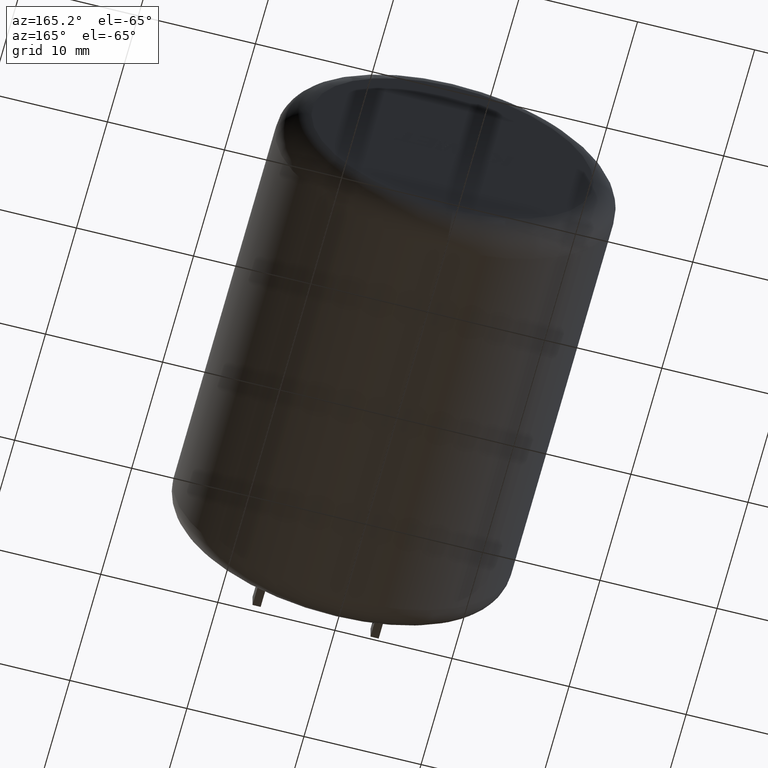
[diagram: clean part render]
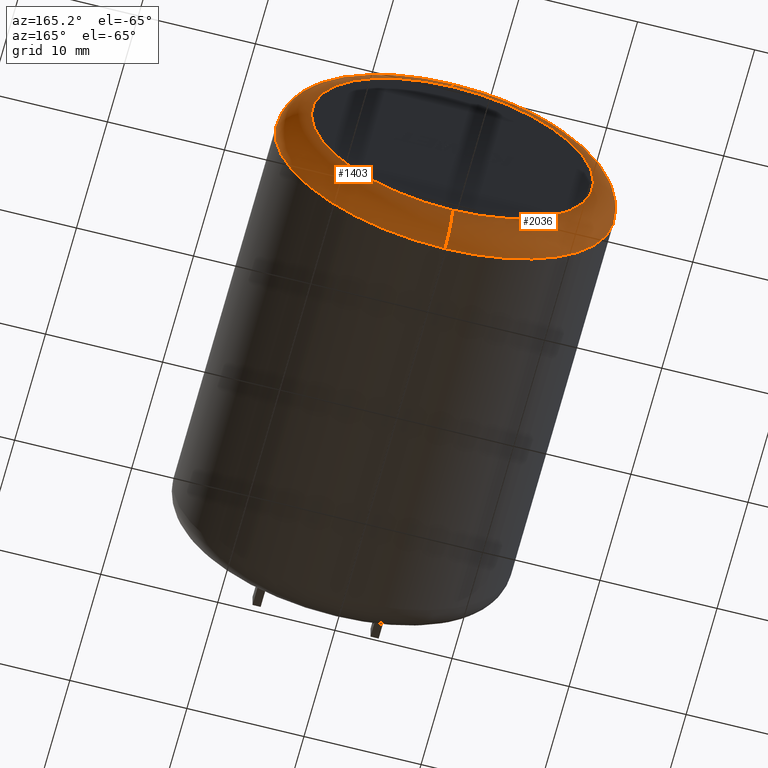
[diagram: same view with one multi-face feature highlighted, each face labeled with its STEP entity id]
A machine part, auxiliary view. The highlighted faces form ONE feature: a constant-radius fillet chain: 2 tangent blend faces with common blend radius 2.451 mm. The faces share edges in the B-rep.
Their STEP definitions:
[1] entity #2036 (Torus):
#50 = DIRECTION ( 'NONE',  ( -0.0000000000000000000, -1.000000000000000000, -0.0000000000000000000 ) ) ;
#98 = EDGE_CURVE ( 'NONE', #2365, #1048, #425, .T. ) ;
#115 = VERTEX_POINT ( 'NONE', #1090 ) ;
#163 = TOROIDAL_SURFACE ( 'NONE', #2208, 12.04900000000000100, 2.451000000000000100 ) ;
#174 = AXIS2_PLACEMENT_3D ( 'NONE', #1300, #247, #1924 ) ;
#188 = ORIENTED_EDGE ( 'NONE', *, *, #394, .F. ) ;
#204 = DIRECTION ( 'NONE',  ( 0.0000000000000000000, 1.000000000000000000, 0.0000000000000000000 ) ) ;
#247 = DIRECTION ( 'NONE',  ( -0.0000000000000000000, -1.000000000000000000, -0.0000000000000000000 ) ) ;
#269 = DIRECTION ( 'NONE',  ( 0.0000000000000000000, 0.0000000000000000000, 1.000000000000000000 ) ) ;
#289 = ORIENTED_EDGE ( 'NONE', *, *, #2350, .F. ) ;
#387 = AXIS2_PLACEMENT_3D ( 'NONE', #862, #1060, #889 ) ;
#394 = EDGE_CURVE ( 'NONE', #2062, #2365, #931, .T. ) ;
#402 = CARTESIAN_POINT ( 'NONE',  ( 0.0000000000000000000, 35.54899999999999900, -14.50000000000000000 ) ) ;
#415 = ORIENTED_EDGE ( 'NONE', *, *, #878, .F. ) ;
#425 = CIRCLE ( 'NONE', #387, 14.50000000000000000 ) ;
#427 = DIRECTION ( 'NONE',  ( 0.0000000000000000000, 0.0000000000000000000, 1.000000000000000000 ) ) ;
#546 = FACE_OUTER_BOUND ( 'NONE', #2556, .T. ) ;
#608 = CARTESIAN_POINT ( 'NONE',  ( 0.0000000000000000000, 35.54899999999999900, 12.04900000000000100 ) ) ;
#631 = DIRECTION ( 'NONE',  ( 0.0000000000000000000, 1.000000000000000000, 0.0000000000000000000 ) ) ;
#632 = CIRCLE ( 'NONE', #891, 12.04900000000000100 ) ;
#642 = CARTESIAN_POINT ( 'NONE',  ( 0.0000000000000000000, 38.00000000000000000, 0.0000000000000000000 ) ) ;
#681 = CARTESIAN_POINT ( 'NONE',  ( -8.873595198949967500, 35.54899999999999900, 11.46775079277414900 ) ) ;
#862 = CARTESIAN_POINT ( 'NONE',  ( 0.0000000000000000000, 35.54899999999999900, 0.0000000000000000000 ) ) ;
#878 = EDGE_CURVE ( 'NONE', #115, #2039, #632, .T. ) ;
#889 = DIRECTION ( 'NONE',  ( 8.881784197001252300E-016, 0.0000000000000000000, 1.000000000000000000 ) ) ;
#891 = AXIS2_PLACEMENT_3D ( 'NONE', #642, #204, #427 ) ;
#904 = ORIENTED_EDGE ( 'NONE', *, *, #945, .F. ) ;
#931 = CIRCLE ( 'NONE', #1104, 14.50000000000000000 ) ;
#939 = DIRECTION ( 'NONE',  ( 1.000000000000000000, -0.0000000000000000000, 1.224646799147353200E-016 ) ) ;
#945 = EDGE_CURVE ( 'NONE', #1357, #115, #2604, .T. ) ;
#1048 = VERTEX_POINT ( 'NONE', #1642 ) ;
#1060 = DIRECTION ( 'NONE',  ( -0.0000000000000000000, -1.000000000000000000, -0.0000000000000000000 ) ) ;
#1090 = CARTESIAN_POINT ( 'NONE',  ( 1.625657393528153900E-015, 38.00000000000000000, -12.04900000000000100 ) ) ;
#1104 = AXIS2_PLACEMENT_3D ( 'NONE', #1356, #50, #269 ) ;
#1300 = CARTESIAN_POINT ( 'NONE',  ( 0.0000000000000000000, 35.54899999999999900, 0.0000000000000000000 ) ) ;
#1307 = AXIS2_PLACEMENT_3D ( 'NONE', #608, #1858, #1631 ) ;
#1356 = CARTESIAN_POINT ( 'NONE',  ( 0.0000000000000000000, 35.54899999999999900, 0.0000000000000000000 ) ) ;
#1357 = VERTEX_POINT ( 'NONE', #402 ) ;
#1453 = CIRCLE ( 'NONE', #174, 14.50000000000000000 ) ;
#1499 = CARTESIAN_POINT ( 'NONE',  ( 0.0000000000000000000, 38.00000000000000000, 12.04900000000000100 ) ) ;
#1631 = DIRECTION ( 'NONE',  ( 0.0000000000000000000, 0.0000000000000000000, 1.000000000000000000 ) ) ;
#1642 = CARTESIAN_POINT ( 'NONE',  ( -10.36606700977331000, 35.54899999999999900, 10.13876988341729100 ) ) ;
#1785 = CARTESIAN_POINT ( 'NONE',  ( 1.475576928292645800E-015, 35.54899999999999900, -12.04900000000000100 ) ) ;
#1858 = DIRECTION ( 'NONE',  ( -1.000000000000000000, 0.0000000000000000000, 0.0000000000000000000 ) ) ;
#1924 = DIRECTION ( 'NONE',  ( 0.0000000000000000000, 0.0000000000000000000, 1.000000000000000000 ) ) ;
#1973 = ORIENTED_EDGE ( 'NONE', *, *, #2549, .T. ) ;
#1981 = ORIENTED_EDGE ( 'NONE', *, *, #98, .F. ) ;
#2016 = AXIS2_PLACEMENT_3D ( 'NONE', #1785, #939, #2627 ) ;
#2036 = ADVANCED_FACE ( 'NONE', ( #546 ), #163, .T. ) ;
#2039 = VERTEX_POINT ( 'NONE', #1499 ) ;
#2062 = VERTEX_POINT ( 'NONE', #2740 ) ;
#2094 = CIRCLE ( 'NONE', #1307, 2.451000000000000100 ) ;
#2208 = AXIS2_PLACEMENT_3D ( 'NONE', #2727, #631, #2544 ) ;
#2350 = EDGE_CURVE ( 'NONE', #1048, #1357, #1453, .T. ) ;
#2365 = VERTEX_POINT ( 'NONE', #681 ) ;
#2544 = DIRECTION ( 'NONE',  ( 0.0000000000000000000, 0.0000000000000000000, 1.000000000000000000 ) ) ;
#2549 = EDGE_CURVE ( 'NONE', #2062, #2039, #2094, .T. ) ;
#2556 = EDGE_LOOP ( 'NONE', ( #904, #289, #1981, #188, #1973, #415 ) ) ;
#2604 = CIRCLE ( 'NONE', #2016, 2.451000000000000100 ) ;
#2627 = DIRECTION ( 'NONE',  ( 1.224646799147352700E-016, 0.0000000000000000000, -1.000000000000000000 ) ) ;
#2727 = CARTESIAN_POINT ( 'NONE',  ( 0.0000000000000000000, 35.54899999999999900, 0.0000000000000000000 ) ) ;
#2740 = CARTESIAN_POINT ( 'NONE',  ( 1.775737858763662000E-015, 35.54899999999999900, 14.50000000000000000 ) ) ;
[2] entity #1403 (Torus):
#115 = VERTEX_POINT ( 'NONE', #1090 ) ;
#158 = DIRECTION ( 'NONE',  ( 0.0000000000000000000, 0.0000000000000000000, 1.000000000000000000 ) ) ;
#172 = TOROIDAL_SURFACE ( 'NONE', #1244, 12.04900000000000100, 2.451000000000000100 ) ;
#402 = CARTESIAN_POINT ( 'NONE',  ( 0.0000000000000000000, 35.54899999999999900, -14.50000000000000000 ) ) ;
#478 = ORIENTED_EDGE ( 'NONE', *, *, #1258, .F. ) ;
#608 = CARTESIAN_POINT ( 'NONE',  ( 0.0000000000000000000, 35.54899999999999900, 12.04900000000000100 ) ) ;
#648 = CIRCLE ( 'NONE', #2614, 12.04900000000000100 ) ;
#655 = EDGE_CURVE ( 'NONE', #2039, #115, #648, .T. ) ;
#702 = FACE_OUTER_BOUND ( 'NONE', #2233, .T. ) ;
#712 = DIRECTION ( 'NONE',  ( 0.0000000000000000000, 1.000000000000000000, 0.0000000000000000000 ) ) ;
#761 = CIRCLE ( 'NONE', #2254, 14.50000000000000000 ) ;
#939 = DIRECTION ( 'NONE',  ( 1.000000000000000000, -0.0000000000000000000, 1.224646799147353200E-016 ) ) ;
#945 = EDGE_CURVE ( 'NONE', #1357, #115, #2604, .T. ) ;
#959 = DIRECTION ( 'NONE',  ( 0.0000000000000000000, 0.0000000000000000000, 1.000000000000000000 ) ) ;
#991 = ORIENTED_EDGE ( 'NONE', *, *, #655, .F. ) ;
#1004 = CARTESIAN_POINT ( 'NONE',  ( 0.0000000000000000000, 35.54899999999999900, 0.0000000000000000000 ) ) ;
#1090 = CARTESIAN_POINT ( 'NONE',  ( 1.625657393528153900E-015, 38.00000000000000000, -12.04900000000000100 ) ) ;
#1244 = AXIS2_PLACEMENT_3D ( 'NONE', #1004, #712, #1946 ) ;
#1258 = EDGE_CURVE ( 'NONE', #1357, #2062, #761, .T. ) ;
#1307 = AXIS2_PLACEMENT_3D ( 'NONE', #608, #1858, #1631 ) ;
#1357 = VERTEX_POINT ( 'NONE', #402 ) ;
#1403 = ADVANCED_FACE ( 'NONE', ( #702 ), #172, .T. ) ;
#1438 = DIRECTION ( 'NONE',  ( -0.0000000000000000000, -1.000000000000000000, -0.0000000000000000000 ) ) ;
#1499 = CARTESIAN_POINT ( 'NONE',  ( 0.0000000000000000000, 38.00000000000000000, 12.04900000000000100 ) ) ;
#1605 = ORIENTED_EDGE ( 'NONE', *, *, #2549, .F. ) ;
#1631 = DIRECTION ( 'NONE',  ( 0.0000000000000000000, 0.0000000000000000000, 1.000000000000000000 ) ) ;
#1685 = ORIENTED_EDGE ( 'NONE', *, *, #945, .T. ) ;
#1785 = CARTESIAN_POINT ( 'NONE',  ( 1.475576928292645800E-015, 35.54899999999999900, -12.04900000000000100 ) ) ;
#1858 = DIRECTION ( 'NONE',  ( -1.000000000000000000, 0.0000000000000000000, 0.0000000000000000000 ) ) ;
#1946 = DIRECTION ( 'NONE',  ( 0.0000000000000000000, 0.0000000000000000000, 1.000000000000000000 ) ) ;
#2016 = AXIS2_PLACEMENT_3D ( 'NONE', #1785, #939, #2627 ) ;
#2039 = VERTEX_POINT ( 'NONE', #1499 ) ;
#2062 = VERTEX_POINT ( 'NONE', #2740 ) ;
#2094 = CIRCLE ( 'NONE', #1307, 2.451000000000000100 ) ;
#2219 = CARTESIAN_POINT ( 'NONE',  ( 0.0000000000000000000, 38.00000000000000000, 0.0000000000000000000 ) ) ;
#2233 = EDGE_LOOP ( 'NONE', ( #478, #1685, #991, #1605 ) ) ;
#2254 = AXIS2_PLACEMENT_3D ( 'NONE', #2507, #1438, #158 ) ;
#2427 = DIRECTION ( 'NONE',  ( 0.0000000000000000000, 1.000000000000000000, 0.0000000000000000000 ) ) ;
#2507 = CARTESIAN_POINT ( 'NONE',  ( 0.0000000000000000000, 35.54899999999999900, 0.0000000000000000000 ) ) ;
#2549 = EDGE_CURVE ( 'NONE', #2062, #2039, #2094, .T. ) ;
#2604 = CIRCLE ( 'NONE', #2016, 2.451000000000000100 ) ;
#2614 = AXIS2_PLACEMENT_3D ( 'NONE', #2219, #2427, #959 ) ;
#2627 = DIRECTION ( 'NONE',  ( 1.224646799147352700E-016, 0.0000000000000000000, -1.000000000000000000 ) ) ;
#2740 = CARTESIAN_POINT ( 'NONE',  ( 1.775737858763662000E-015, 35.54899999999999900, 14.50000000000000000 ) ) ;